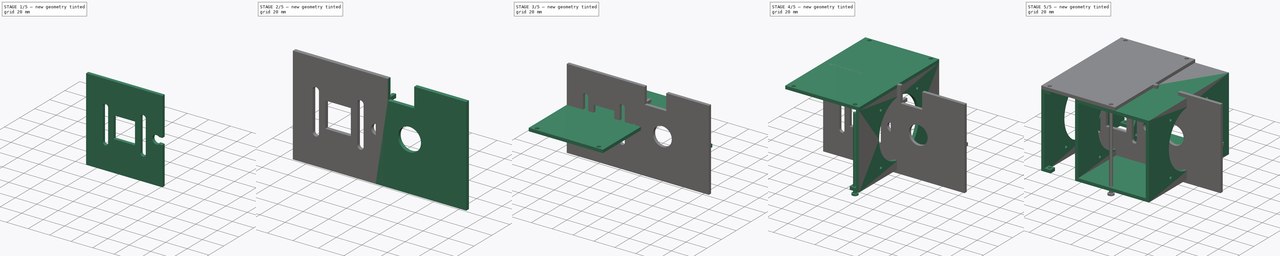
[diagram: build sequence overview — one tinted view per stage of 5, left to right]
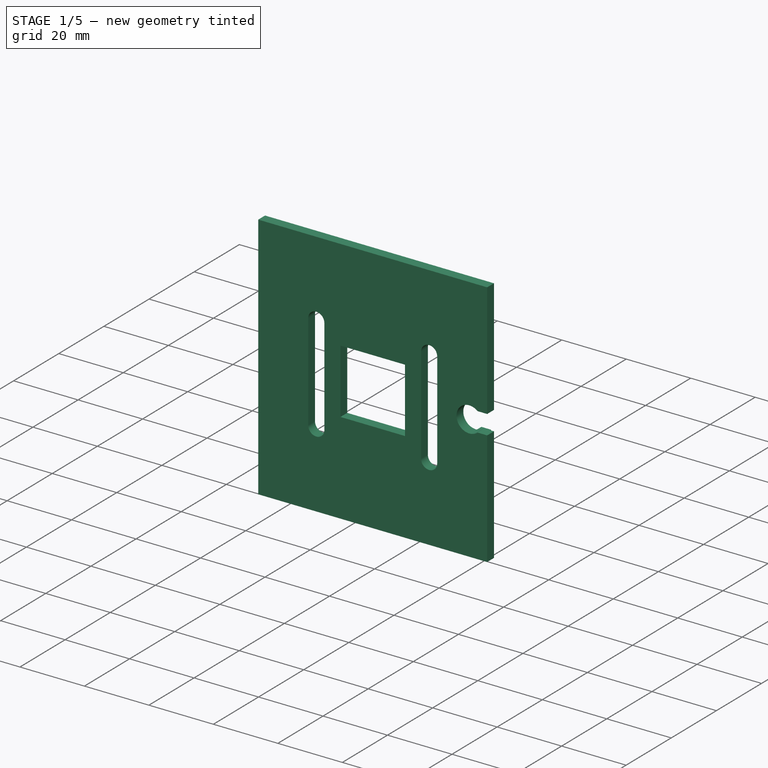
[diagram: stage 1 of 5 — iso view after this stage's code; geometry added in this stage tinted green]
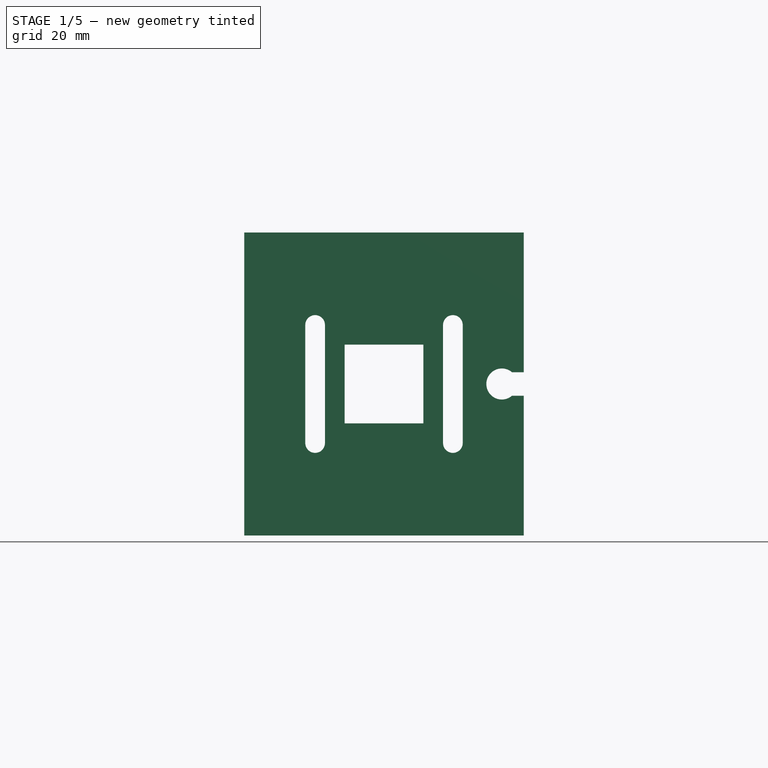
[diagram: stage 1 of 5 — front view after this stage's code; geometry added in this stage tinted green]
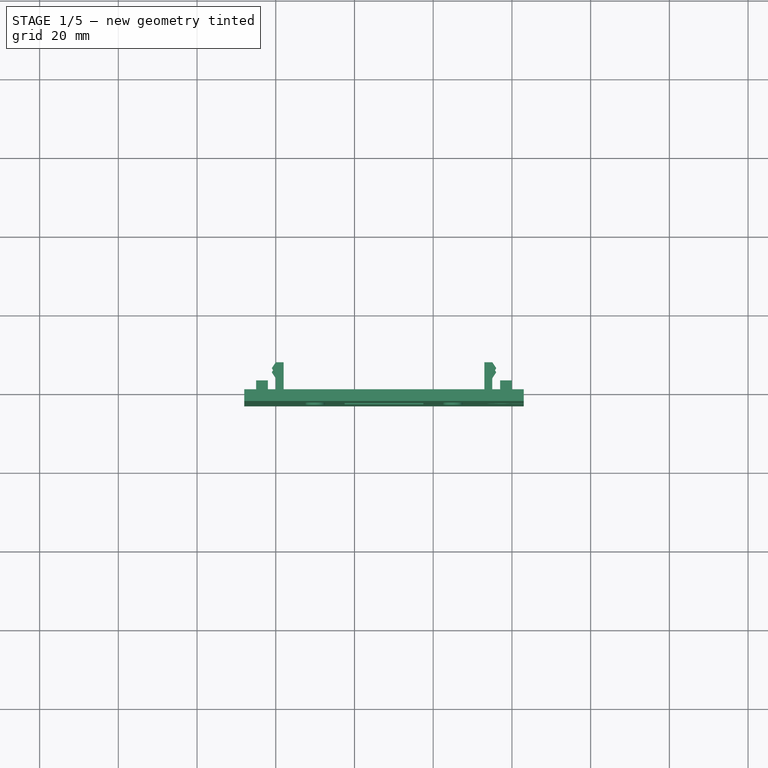
[diagram: stage 1 of 5 — top view after this stage's code; geometry added in this stage tinted green]
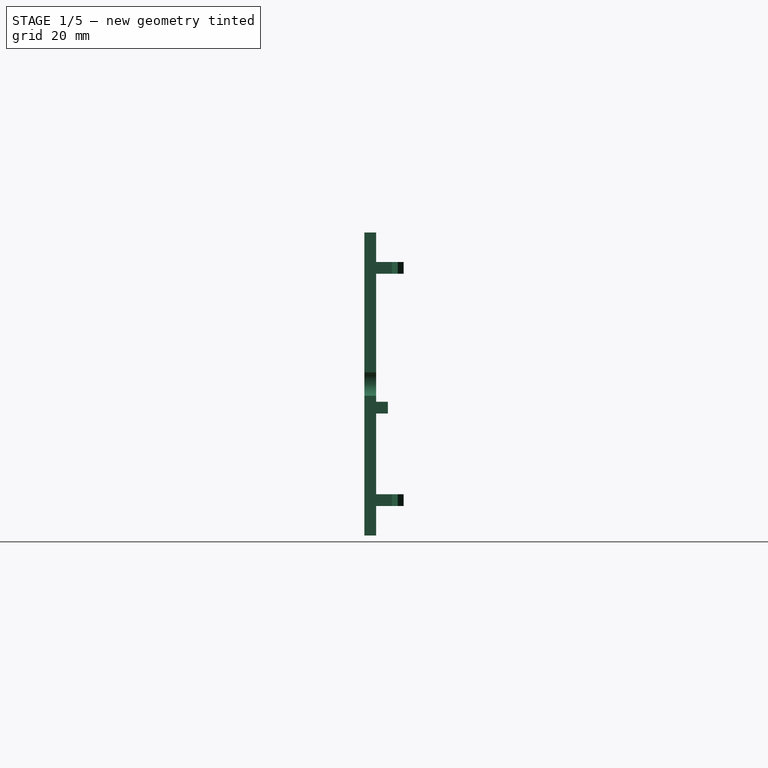
[diagram: stage 1 of 5 — right view after this stage's code; geometry added in this stage tinted green]
FCSTD DOCUMENT  (FreeCAD 0.19R24291 (Git))
Label: psu
License: All rights reserved
LicenseURL: http://en.wikipedia.org/wiki/All_rights_reserved
objects: Sketcher::SketchObject×14, PartDesign::Pad×12, PartDesign::Body×5, PartDesign::Mirrored×3, Part::Mirroring×2, PartDesign::Pocket×1, Part::FeaturePython×1
note: 51 computed .brp shape members not serialized (recipe doc carries the construction recipe); baked Part::Feature solids carry a one-line shape summary decoded from their .brp

FEATURE [Sketcher::SketchObject] Sketch009
  AttachmentOffset = pos=(0,0,31) rot=(0,0,1;0rad)
  FullyConstrained = true
  MapMode = 5
  Placement = pos=(0,0,31) rot=(0,0,1;0rad)
  Support = -> [XY_Plane003]
  sketch-geometry (12):
    g0: LineSegment StartX=-5 StartY=0 StartZ=0 EndX=-5 EndY=4 EndZ=0
    g1: LineSegment StartX=-5 StartY=4 StartZ=0 EndX=-4 EndY=5.5 EndZ=0
    g2: LineSegment StartX=-4 StartY=5.5 StartZ=0 EndX=-5 EndY=7 EndZ=0
    g3: LineSegment StartX=-5 StartY=7 StartZ=0 EndX=-7 EndY=7 EndZ=0
    g4: LineSegment StartX=-7 StartY=7 StartZ=0 EndX=-7 EndY=0 EndZ=0
    g5: LineSegment StartX=-7 StartY=0 StartZ=0 EndX=-5 EndY=0 EndZ=0
    g6: LineSegment StartX=-60 StartY=0 StartZ=0 EndX=-60 EndY=4 EndZ=0
    g7: LineSegment StartX=-60 StartY=4 StartZ=0 EndX=-61 EndY=5.5 EndZ=0
    g8: LineSegment StartX=-61 StartY=5.5 StartZ=0 EndX=-60 EndY=7 EndZ=0
    g9: LineSegment StartX=-60 StartY=7 StartZ=0 EndX=-58 EndY=7 EndZ=0
    g10: LineSegment StartX=-58 StartY=7 StartZ=0 EndX=-58 EndY=0 EndZ=0
    g11: LineSegment StartX=-58 StartY=0 StartZ=0 EndX=-60 EndY=0 EndZ=0
  constraints (36):
    c: PointOnObject(g0,g-1)
    c: Coincident(g0,g1)
    c: Coincident(g1,g2)
    c: Coincident(g2,g3)
    c: Coincident(g3,g4)
    c: PointOnObject(g4,g-1)
    c: Coincident(g4,g5)
    c: Coincident(g5,g0)
    c: DistanceX(g0,g-1) = 5
    c: DistanceX(g5,g5) = 2
    c: DistanceY(g4,g4) = 7
    c: Equal(g1,g2)
    c: DistanceY(g0,g0) = 4
    c: DistanceX(g0,g1) = 1
    c: Horizontal(g3)
    c: Vertical(g0)
    c: Equal(g3,g5)
    c: Vertical(g4)
    c: PointOnObject(g6,g-1)
    c: Vertical(g6)
    c: Coincident(g6,g7)
    c: Coincident(g7,g8)
    c: Coincident(g8,g9)
    c: Horizontal(g9)
    c: Coincident(g9,g10)
    c: PointOnObject(g10,g-1)
    c: Vertical(g10)
    c: Coincident(g10,g11)
    c: Coincident(g11,g6)
    c: Equal(g7,g8)
    c: Equal(g8,g2)
    c: Equal(g11,g9)
    c: Equal(g9,g3)
    c: Equal(g6,g0)
    c: Equal(g10,g4)
    c: DistanceX(g6,g-1) = 60
FEATURE [Sketcher::SketchObject] Sketch008
  FullyConstrained = true
  MapMode = 5
  Placement = pos=(0,0,0) rot=(1,0,0;1.5708rad)
  Support = -> [XZ_Plane003]
  sketch-geometry (23):
    g0: LineSegment StartX=-68 StartY=-38.5 StartZ=0 EndX=3 EndY=-38.5 EndZ=0
    g1: LineSegment StartX=3 StartY=38.5 StartZ=0 EndX=-68 EndY=38.5 EndZ=0
    g2: LineSegment StartX=-68 StartY=38.5 StartZ=0 EndX=-68 EndY=-38.5 EndZ=0
    g3: LineSegment StartX=-6.5 StartY=0 StartZ=0 EndX=3 EndY=0 EndZ=0
    g4: LineSegment StartX=3 StartY=-3 StartZ=0 EndX=3 EndY=-38.5 EndZ=0
    g5: LineSegment StartX=3 StartY=3 StartZ=0 EndX=3 EndY=38.5 EndZ=0
    g6: ArcOfCircle CenterX=-2.55769 CenterY=0 CenterZ=0 NormalX=0 NormalY=0 NormalZ=1 AngleXU=0 Radius=3.94231 StartAngle=0.864816 EndAngle=5.41837
    g7: LineSegment StartX=4e-16 StartY=-3 StartZ=0 EndX=3 EndY=-3 EndZ=0
    g8: LineSegment StartX=0 StartY=3 StartZ=0 EndX=3 EndY=3 EndZ=0
    g9: ArcOfCircle CenterX=-15 CenterY=15 CenterZ=0 NormalX=0 NormalY=0 NormalZ=1 AngleXU=0 Radius=2.5 StartAngle=0 EndAngle=3.14159
    g10: ArcOfCircle CenterX=-15 CenterY=-15 CenterZ=0 NormalX=0 NormalY=0 NormalZ=1 AngleXU=0 Radius=2.5 StartAngle=3.14159 EndAngle=6.28319
    g11: LineSegment StartX=-17.5 StartY=15 StartZ=0 EndX=-17.5 EndY=-15 EndZ=0
    g12: LineSegment StartX=-12.5 StartY=15 StartZ=0 EndX=-12.5 EndY=-15 EndZ=0
    g13: ArcOfCircle CenterX=-50 CenterY=15 CenterZ=0 NormalX=0 NormalY=0 NormalZ=1 AngleXU=0 Radius=2.5 StartAngle=0 EndAngle=3.14159
    g14: ArcOfCircle CenterX=-50 CenterY=-15 CenterZ=0 NormalX=0 NormalY=0 NormalZ=1 AngleXU=0 Radius=2.5 StartAngle=3.14159 EndAngle=6.28319
    g15: LineSegment StartX=-52.5 StartY=15 StartZ=0 EndX=-52.5 EndY=-15 EndZ=0
    g16: LineSegment StartX=-47.5 StartY=15 StartZ=0 EndX=-47.5 EndY=-15 EndZ=0
    g17: LineSegment StartX=-42.5 StartY=10 StartZ=0 EndX=-22.5 EndY=10 EndZ=0
    g18: LineSegment StartX=-22.5 StartY=10 StartZ=0 EndX=-22.5 EndY=-10 EndZ=0
    g19: LineSegment StartX=-22.5 StartY=-10 StartZ=0 EndX=-42.5 EndY=-10 EndZ=0
    g20: LineSegment StartX=-42.5 StartY=-10 StartZ=0 EndX=-42.5 EndY=10 EndZ=0
    g21: GeomPoint X=-32.5 Y=38.5 Z=0
    g22: LineSegment StartX=-32.5 StartY=38.5 StartZ=0 EndX=-32.5 EndY=10 EndZ=0
  constraints (59):
    c: Coincident(g1,g2)
    c: Coincident(g2,g0)
    c: Horizontal(g0)
    c: Horizontal(g1)
    c: Vertical(g2)
    c: Symmetric(g1,g0,g-1)
    c: DistanceY(g0,g1) = 77
    c: DistanceX(g1) = 3
    c: DistanceX(g1,g1) = 71
    c: Horizontal(g3)
    c: PointOnObject(g3,g-1)
    c: Coincident(g4,g0)
    c: Vertical(g4)
    c: Coincident(g5,g1)
    c: Vertical(g5,g3)
    c: PointOnObject(g6,g3)
    c: PointOnObject(g3,g6)
    c: PointOnObject(g6,g-2)
    c: PointOnObject(g6,g-2)
    c: Coincident(g7,g6)
    c: Coincident(g7,g4)
    c: Coincident(g8,g6)
    c: Coincident(g8,g5)
    c: Horizontal(g8)
    c: Horizontal(g7)
    c: DistanceX(g3,g-1) = 6.5
    c: DistanceY(g6,g6) = 6
    c: Vertical(g5)
    c: Tangent(g9,g12) = 1.5708
    c: Tangent(g9,g11) = -1.5708
    c: Tangent(g11,g10) = -1.5708
    c: Tangent(g12,g10) = 1.5708
    c: Vertical(g11)
    c: Tangent(g13,g16) = 1.5708
    c: Tangent(g13,g15) = -1.5708
    c: Tangent(g15,g14) = -1.5708
    c: Tangent(g16,g14) = 1.5708
    c: Vertical(g15)
    c: Symmetric(g13,g14,g-1)
    c: Symmetric(g9,g10,g-1)
    c: Equal(g11,g16)
    c: Equal(g13,g9)
    c: Diameter(g13) = 5
    c: DistanceY(g11,g11) = 30
    c: DistanceX(g14,g10) = 30
    c: Coincident(g17,g18)
    c: Coincident(g18,g19)
    c: Coincident(g19,g20)
    c: Coincident(g20,g17)
    c: Horizontal(g19)
    c: Vertical(g18)
    c: Symmetric(g1,g1,g21)
    c: Coincident(g22,g21)
    c: PointOnObject(g22,g17)
    c: Symmetric(g9,g13,g22)
    c: Symmetric(g17,g17,g22)
    c: Symmetric(g17,g19,g-1)
    c: DistanceY(g20,g20) = 20
    c: DistanceX(g17,g17) = 20
FEATURE [PartDesign::Pad] Pad004  label="main"
  Direction = (1,1,1)
  Length = 3
  Length2 = 100
  Placement = pos=(0,0,0) rot=(1,0,0;1.5708rad)
  Profile = -> Sketch008
  Type = 0
FEATURE [PartDesign::Pad] Pad005  label="pengait"
  BaseFeature = -> Pad004
  Direction = (1,1,1)
  Length = 3
  Length2 = 100
  Placement = pos=(0,0,0) rot=(1,0,0;1.5708rad)
  Profile = -> Sketch009
  Reversed = true
  Type = 0
FEATURE [PartDesign::Mirrored] Mirrored001
  BaseFeature = -> Pad005
  MirrorPlane = -> XY_Plane003
  Originals = -> [Pad005]
  Placement = pos=(0,0,0) rot=(1,0,0;1.5708rad)
FEATURE [PartDesign::Body] Body004  label="coverback"
  Group = -> [Sketch010,Pad006,Sketch011,Pad007,Mirrored002,Sketch012,Pad008,Sketch013,Pad009]
  Origin = -> Origin004
  Placement = pos=(0,55,0) rot=(0,0,1;3.14159rad)
  Tip = -> Pad009
FEATURE [Sketcher::SketchObject] Sketch014
  AttachmentOffset = pos=(0,0,-6) rot=(0,0,1;0rad)
  FullyConstrained = true
  MapMode = 5
  Placement = pos=(0,0,-6) rot=(0,0,1;0rad)
  Support = -> [XY_Plane003]
  sketch-geometry (8):
    g0: LineSegment StartX=0 StartY=0 StartZ=0 EndX=-3 EndY=0 EndZ=0
    g1: LineSegment StartX=-3 StartY=0 StartZ=0 EndX=-3 EndY=3 EndZ=0
    g2: LineSegment StartX=-3 StartY=3 StartZ=0 EndX=0 EndY=3 EndZ=0
    g3: LineSegment StartX=0 StartY=3 StartZ=0 EndX=0 EndY=0 EndZ=0
    g4: LineSegment StartX=-65 StartY=0 StartZ=0 EndX=-62 EndY=0 EndZ=0
    g5: LineSegment StartX=-62 StartY=0 StartZ=0 EndX=-62 EndY=3 EndZ=0
    g6: LineSegment StartX=-62 StartY=3 StartZ=0 EndX=-65 EndY=3 EndZ=0
    g7: LineSegment StartX=-65 StartY=3 StartZ=0 EndX=-65 EndY=0 EndZ=0
  constraints (23):
    c: Coincident(g0,g1)
    c: Coincident(g1,g2)
    c: Coincident(g2,g3)
    c: Coincident(g3,g0)
    c: Horizontal(g0)
    c: Horizontal(g2)
    c: Vertical(g1)
    c: Vertical(g3)
    c: Coincident(g0,g-1)
    c: Coincident(g4,g5)
    c: Coincident(g5,g6)
    c: Coincident(g6,g7)
    c: Coincident(g7,g4)
    c: Horizontal(g4)
    c: Horizontal(g6)
    c: Vertical(g5)
    c: Vertical(g7)
    c: PointOnObject(g4,g-1)
    c: DistanceX(g4,g0) = 65
    c: Equal(g2,g1)
    c: Equal(g1,g6)
    c: Equal(g6,g5)
    c: DistanceX(g6,g5) = 3
FEATURE [PartDesign::Pad] Pad010
  BaseFeature = -> Mirrored001
  Direction = (1,1,1)
  Length = 3
  Length2 = 100
  Midplane = true
  Placement = pos=(0,0,0) rot=(1,0,0;1.5708rad)
  Profile = -> Sketch014
  Type = 0
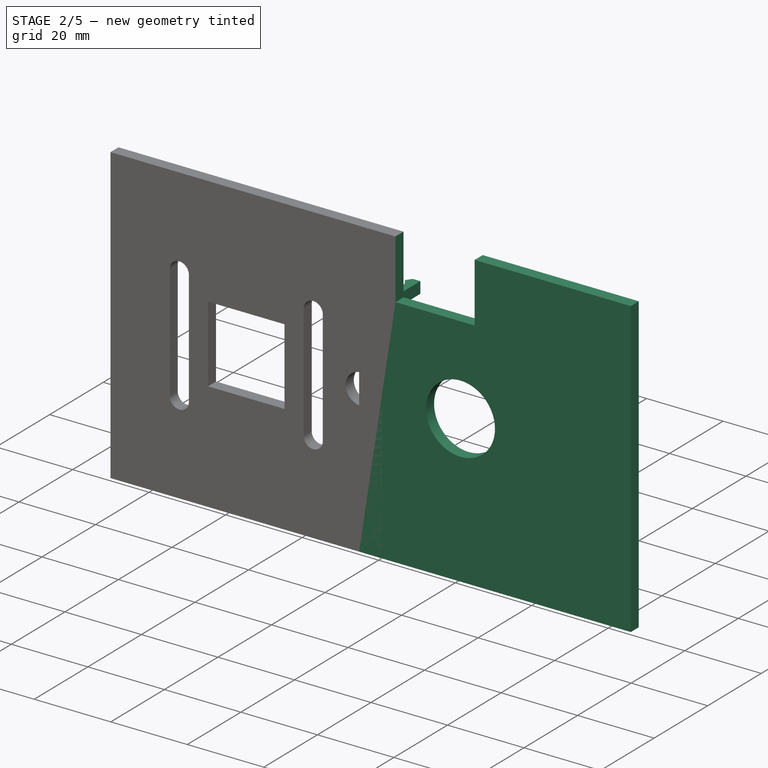
[diagram: stage 2 of 5 — iso view after this stage's code; geometry added in this stage tinted green]
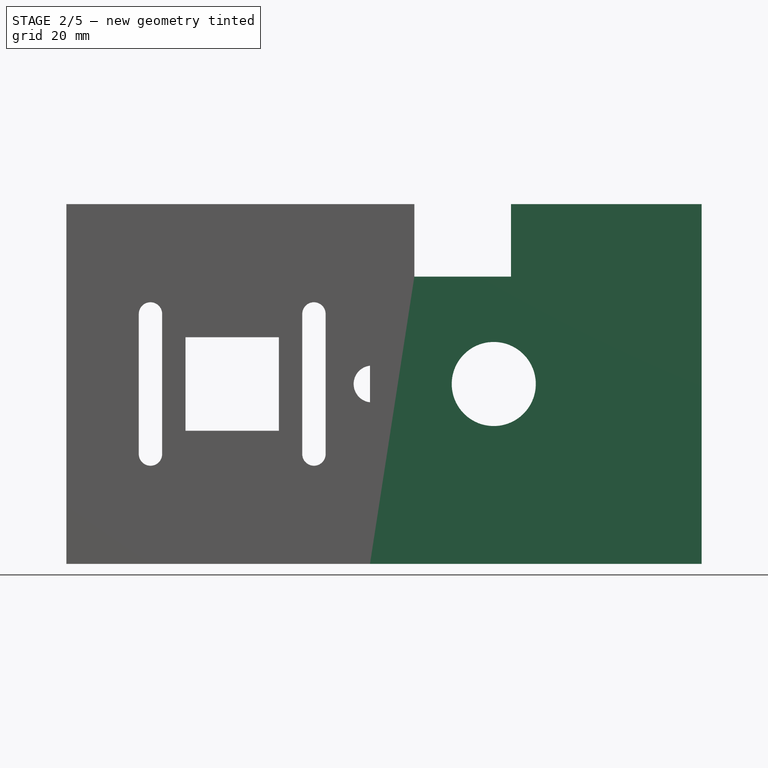
[diagram: stage 2 of 5 — front view after this stage's code; geometry added in this stage tinted green]
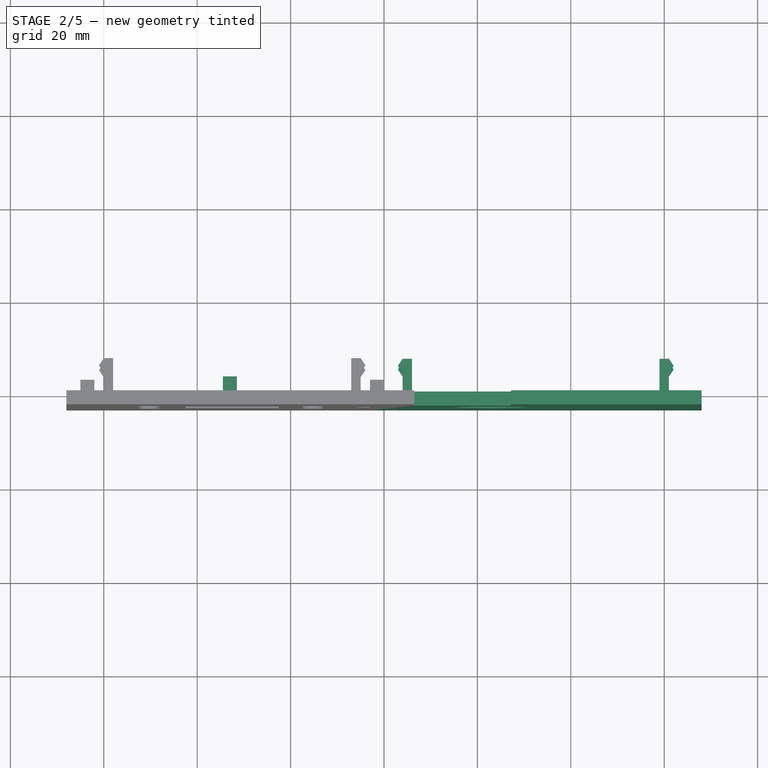
[diagram: stage 2 of 5 — top view after this stage's code; geometry added in this stage tinted green]
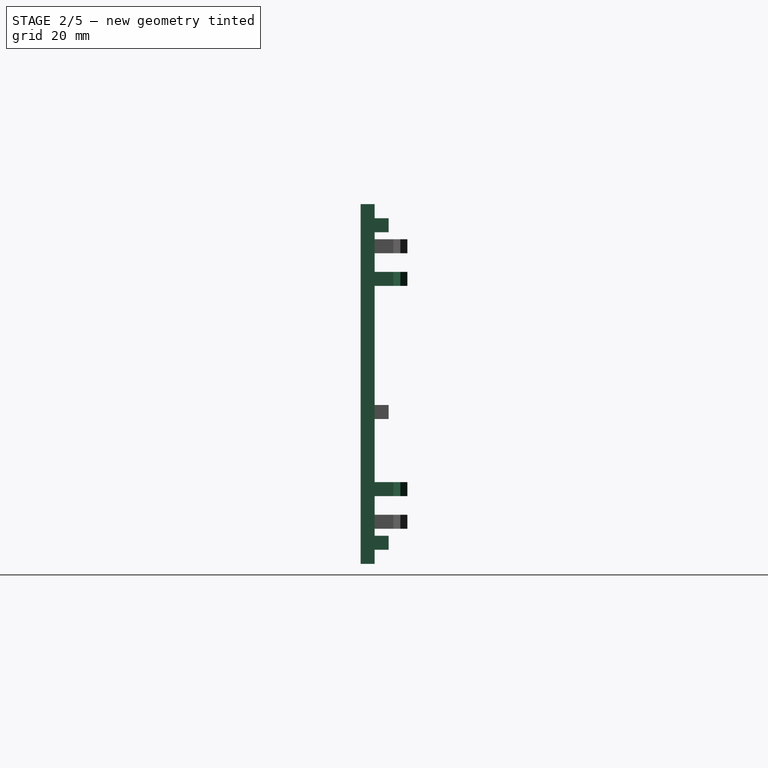
[diagram: stage 2 of 5 — right view after this stage's code; geometry added in this stage tinted green]
FEATURE [Sketcher::SketchObject] Sketch010
  FullyConstrained = true
  MapMode = 5
  Placement = pos=(0,0,0) rot=(1,0,0;1.5708rad)
  Support = -> [XZ_Plane004]
  sketch-geometry (10):
    g0: LineSegment StartX=68 StartY=38.5 StartZ=0 EndX=68 EndY=-38.5 EndZ=0
    g1: LineSegment StartX=68 StartY=-38.5 StartZ=0 EndX=-3 EndY=-38.5 EndZ=0
    g2: LineSegment StartX=-3 StartY=-38.5 StartZ=0 EndX=-3 EndY=38.5 EndZ=0
    g3: LineSegment StartX=32.5 StartY=38.5 StartZ=0 EndX=32.5 EndY=-38.5 EndZ=0
    g4: Circle CenterX=23.5 CenterY=0 CenterZ=0 NormalX=0 NormalY=0 NormalZ=1 AngleXU=0 Radius=9
    g5: LineSegment StartX=27.2 StartY=38.5 StartZ=0 EndX=27.2 EndY=23 EndZ=0
    g6: LineSegment StartX=27.2 StartY=23 StartZ=0 EndX=6.5 EndY=23 EndZ=0
    g7: LineSegment StartX=6.5 StartY=23 StartZ=0 EndX=6.5 EndY=38.5 EndZ=0
    g8: LineSegment StartX=-3 StartY=38.5 StartZ=0 EndX=6.5 EndY=38.5 EndZ=0
    g9: LineSegment StartX=27.2 StartY=38.5 StartZ=0 EndX=68 EndY=38.5 EndZ=0
  constraints (29):
    c: Coincident(g0,g1)
    c: Coincident(g1,g2)
    c: Horizontal(g1)
    c: Vertical(g0)
    c: Symmetric(g1,g2,g-1)
    c: DistanceY(g2,g2) = 77
    c: DistanceX(g2,g0) = 71
    c: DistanceX(g1,g-1) = 3
    c: PointOnObject(g3,g1)
    c: Vertical(g3)
    c: Symmetric(g0,g2,g3)
    c: PointOnObject(g4,g-1)
    c: Tangent(g4,g3)
    c: Diameter(g4) = 18
    c: Coincident(g5,g6)
    c: Coincident(g6,g7)
    c: Horizontal(g6)
    c: Vertical(g5)
    c: Vertical(g7)
    c: Coincident(g8,g2)
    c: Horizontal(g8)
    c: Coincident(g9,g0)
    c: Horizontal(g9)
    c: Coincident(g9,g5)
    c: Coincident(g7,g8)
    c: DistanceY(g7,g7) = 15.5
    c: DistanceX(g8,g8) = 9.5
    c: DistanceX(g6,g6) = 20.7
    c: Horizontal(g5,g3)
FEATURE [PartDesign::Pad] Pad006  label="main001"
  Direction = (1,1,1)
  Length = 3
  Length2 = 100
  Placement = pos=(0,0,0) rot=(1,0,0;1.5708rad)
  Profile = -> Sketch010
  Type = 0
FEATURE [Sketcher::SketchObject] Sketch011
  AttachmentOffset = pos=(0,0,24) rot=(0,0,1;0rad)
  FullyConstrained = true
  MapMode = 5
  Placement = pos=(0,0,24) rot=(0,0,1;0rad)
  Support = -> [XY_Plane004]
  sketch-geometry (12):
    g0: LineSegment StartX=61 StartY=0 StartZ=0 EndX=61 EndY=4 EndZ=0
    g1: LineSegment StartX=61 StartY=4 StartZ=0 EndX=62 EndY=5.5 EndZ=0
    g2: LineSegment StartX=62 StartY=5.5 StartZ=0 EndX=61 EndY=7 EndZ=0
    g3: LineSegment StartX=61 StartY=7 StartZ=0 EndX=59 EndY=7 EndZ=0
    g4: LineSegment StartX=59 StartY=7 StartZ=0 EndX=59 EndY=0 EndZ=0
    g5: LineSegment StartX=59 StartY=0 StartZ=0 EndX=61 EndY=0 EndZ=0
    g6: LineSegment StartX=4 StartY=0 StartZ=0 EndX=4 EndY=4 EndZ=0
    g7: LineSegment StartX=4 StartY=4 StartZ=0 EndX=3 EndY=5.5 EndZ=0
    g8: LineSegment StartX=3 StartY=5.5 StartZ=0 EndX=4 EndY=7 EndZ=0
    g9: LineSegment StartX=4 StartY=7 StartZ=0 EndX=6 EndY=7 EndZ=0
    g10: LineSegment StartX=6 StartY=7 StartZ=0 EndX=6 EndY=0 EndZ=0
    g11: LineSegment StartX=6 StartY=0 StartZ=0 EndX=4 EndY=0 EndZ=0
  constraints (36):
    c: PointOnObject(g0,g-1)
    c: Coincident(g0,g1)
    c: Coincident(g1,g2)
    c: Coincident(g2,g3)
    c: Coincident(g3,g4)
    c: PointOnObject(g4,g-1)
    c: Coincident(g4,g5)
    c: Coincident(g5,g0)
    c: DistanceX(g5,g5) = 2
    c: DistanceY(g4,g4) = 7
    c: Equal(g1,g2)
    c: DistanceY(g0,g0) = 4
    c: DistanceX(g0,g1) = 1
    c: Horizontal(g3)
    c: Vertical(g0)
    c: Equal(g3,g5)
    c: Vertical(g4)
    c: PointOnObject(g6,g-1)
    c: Vertical(g6)
    c: Coincident(g6,g7)
    c: Coincident(g7,g8)
    c: Coincident(g8,g9)
    c: Horizontal(g9)
    c: Coincident(g9,g10)
    c: PointOnObject(g10,g-1)
    c: Vertical(g10)
    c: Coincident(g10,g11)
    c: Coincident(g11,g6)
    c: Equal(g7,g8)
    c: Equal(g8,g2)
    c: Equal(g11,g9)
    c: Equal(g9,g3)
    c: Equal(g6,g0)
    c: Equal(g10,g4)
    c: DistanceX(g10,g4) = 53
    c: DistanceX(g-1,g6) = 4
FEATURE [PartDesign::Pad] Pad007  label="pengait001"
  BaseFeature = -> Pad006
  Direction = (1,1,1)
  Length = 3
  Length2 = 100
  Placement = pos=(0,0,0) rot=(1,0,0;1.5708rad)
  Profile = -> Sketch011
  Reversed = true
  Type = 0
FEATURE [PartDesign::Mirrored] Mirrored002
  BaseFeature = -> Pad007
  MirrorPlane = -> XY_Plane004
  Originals = -> [Pad007]
  Placement = pos=(0,0,0) rot=(1,0,0;1.5708rad)
FEATURE [Sketcher::SketchObject] Sketch015
  AttachmentOffset = pos=(0,0,-33) rot=(0,0,1;0rad)
  FullyConstrained = true
  MapMode = 5
  Placement = pos=(-33,7.3e-15,-7.3e-15) rot=(0.57735,0.57735,0.57735;2.0944rad)
  Support = -> [YZ_Plane003]
  sketch-geometry (8):
    g0: LineSegment StartX=0 StartY=-35.5 StartZ=0 EndX=3 EndY=-35.5 EndZ=0
    g1: LineSegment StartX=3 StartY=-35.5 StartZ=0 EndX=3 EndY=-32.5 EndZ=0
    g2: LineSegment StartX=3 StartY=-32.5 StartZ=0 EndX=0 EndY=-32.5 EndZ=0
    g3: LineSegment StartX=0 StartY=-32.5 StartZ=0 EndX=0 EndY=-35.5 EndZ=0
    g4: LineSegment StartX=0 StartY=32.5 StartZ=0 EndX=3 EndY=32.5 EndZ=0
    g5: LineSegment StartX=3 StartY=32.5 StartZ=0 EndX=3 EndY=35.5 EndZ=0
    g6: LineSegment StartX=3 StartY=35.5 StartZ=0 EndX=0 EndY=35.5 EndZ=0
    g7: LineSegment StartX=0 StartY=35.5 StartZ=0 EndX=0 EndY=32.5 EndZ=0
  constraints (23):
    c: Coincident(g0,g1)
    c: Coincident(g1,g2)
    c: Coincident(g2,g3)
    c: Coincident(g3,g0)
    c: Horizontal(g0)
    c: Horizontal(g2)
    c: Vertical(g1)
    c: Vertical(g3)
    c: PointOnObject(g0,g-2)
    c: Coincident(g4,g5)
    c: Coincident(g5,g6)
    c: Coincident(g6,g7)
    c: Coincident(g7,g4)
    c: Horizontal(g4)
    c: Horizontal(g6)
    c: Vertical(g5)
    c: Vertical(g7)
    c: Equal(g4,g5)
    c: Equal(g5,g2)
    c: Equal(g2,g1)
    c: DistanceY(g1,g1) = 3
    c: Symmetric(g2,g4,g-1)
    c: DistanceY(g1,g4) = 65
FEATURE [PartDesign::Pad] Pad011
  BaseFeature = -> Pad010
  Direction = (1,1,1)
  Length = 3
  Length2 = 100
  Midplane = true
  Placement = pos=(0,0,0) rot=(1,0,0;1.5708rad)
  Profile = -> Sketch015
  Type = 0
FEATURE [PartDesign::Body] Body003  label="coverfront"
  Group = -> [Sketch008,Sketch009,Pad004,Pad005,Mirrored001,Sketch014,Pad010,Sketch015,Pad011]
  Origin = -> Origin003
  Placement = pos=(0,-55,0) rot=(0,0,1;0rad)
  Tip = -> Pad011
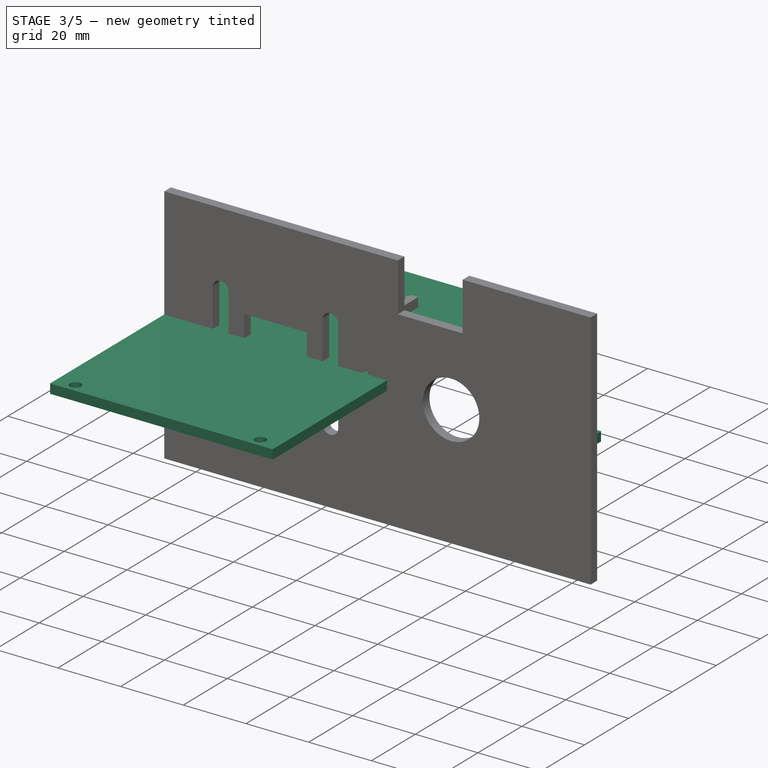
[diagram: stage 3 of 5 — iso view after this stage's code; geometry added in this stage tinted green]
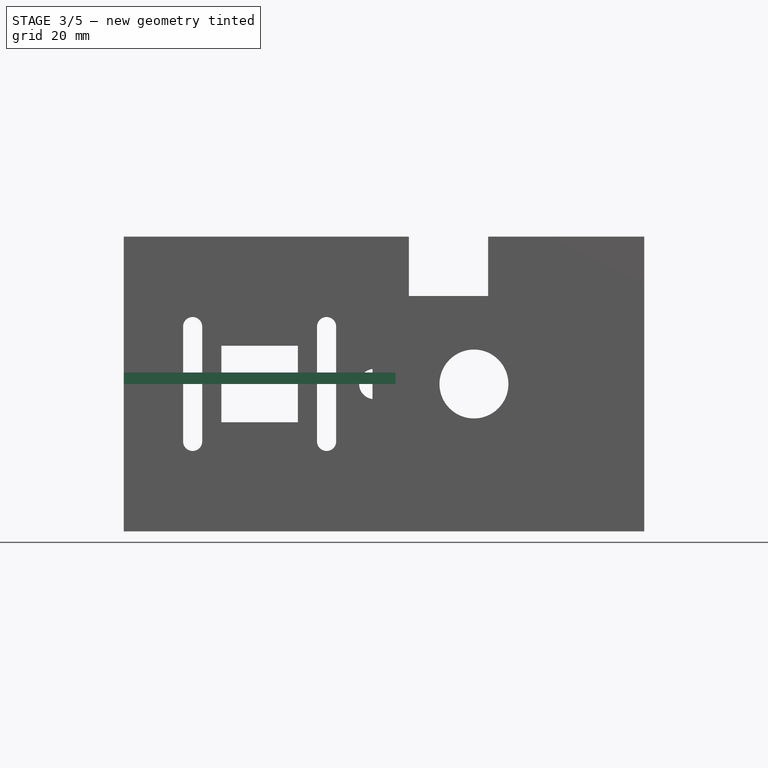
[diagram: stage 3 of 5 — front view after this stage's code; geometry added in this stage tinted green]
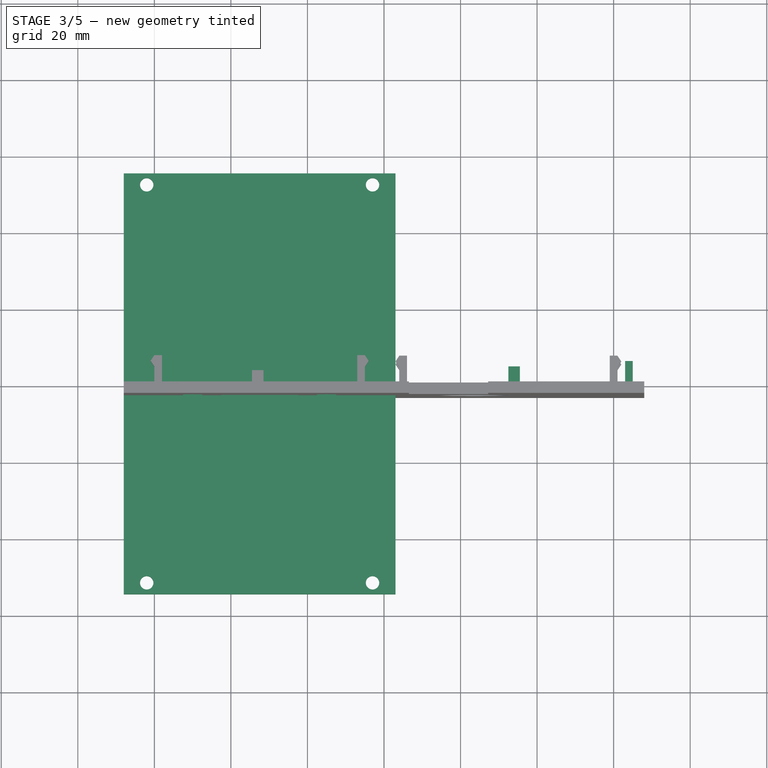
[diagram: stage 3 of 5 — top view after this stage's code; geometry added in this stage tinted green]
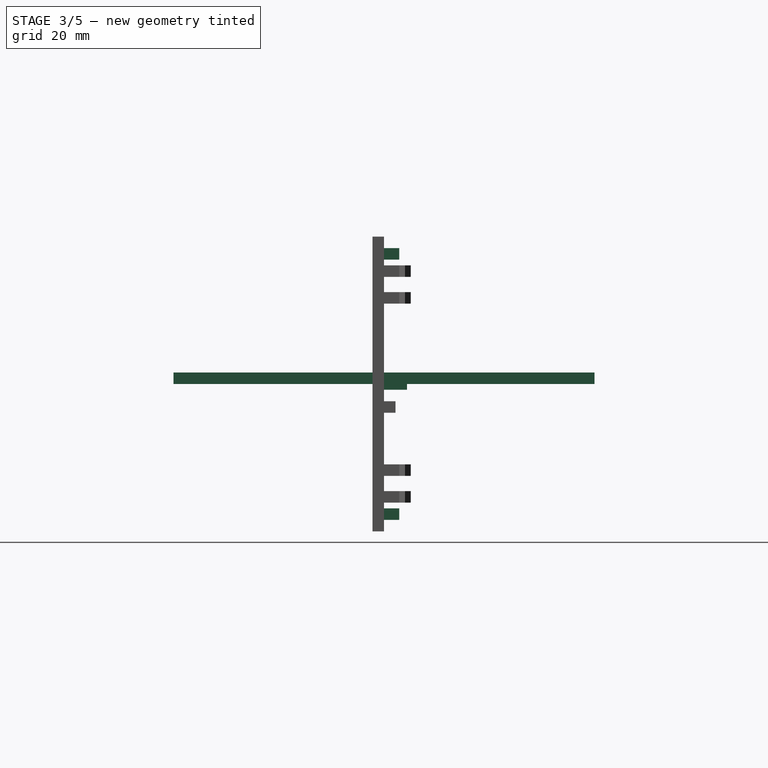
[diagram: stage 3 of 5 — right view after this stage's code; geometry added in this stage tinted green]
FEATURE [PartDesign::Body] Body001  label="coverplane"
  Group = -> [Sketch004,Pad001,Sketch005,Pad002,Mirrored]
  Origin = -> Origin001
  Tip = -> Mirrored
FEATURE [Sketcher::SketchObject] Sketch007
  FullyConstrained = true
  MapMode = 5
  Support = -> [XY_Plane002]
  sketch-geometry (12):
    g0: LineSegment StartX=3 StartY=55 StartZ=0 EndX=-68 EndY=55 EndZ=0
    g1: LineSegment StartX=-68 StartY=55 StartZ=0 EndX=-68 EndY=-55 EndZ=0
    g2: LineSegment StartX=-68 StartY=-55 StartZ=0 EndX=3 EndY=-55 EndZ=0
    g3: LineSegment StartX=3 StartY=-55 StartZ=0 EndX=3 EndY=55 EndZ=0
    g4: LineSegment StartX=-62 StartY=52 StartZ=0 EndX=-3 EndY=52 EndZ=0
    g5: LineSegment StartX=-3 StartY=52 StartZ=0 EndX=-3 EndY=-52 EndZ=0
    g6: LineSegment StartX=-3 StartY=-52 StartZ=0 EndX=-62 EndY=-52 EndZ=0
    g7: LineSegment StartX=-62 StartY=-52 StartZ=0 EndX=-62 EndY=52 EndZ=0
    g8: Circle CenterX=-62 CenterY=52 CenterZ=0 NormalX=0 NormalY=0 NormalZ=1 AngleXU=0 Radius=1.75
    g9: Circle CenterX=-62 CenterY=-52 CenterZ=0 NormalX=0 NormalY=0 NormalZ=1 AngleXU=0 Radius=1.75
    g10: Circle CenterX=-3 CenterY=52 CenterZ=0 NormalX=0 NormalY=0 NormalZ=1 AngleXU=0 Radius=1.75
    g11: Circle CenterX=-3 CenterY=-52 CenterZ=0 NormalX=0 NormalY=0 NormalZ=1 AngleXU=0 Radius=1.75
  constraints (31):
    c: Coincident(g0,g1)
    c: Coincident(g1,g2)
    c: Coincident(g2,g3)
    c: Coincident(g3,g0)
    c: Horizontal(g0)
    c: Horizontal(g2)
    c: Vertical(g3)
    c: Symmetric(g1,g0,g-1)
    c: DistanceY(g1,g1) = 110
    c: DistanceX(g0,g0) = 71
    c: DistanceX(g2) = 3
    c: Coincident(g4,g5)
    c: Coincident(g5,g6)
    c: Coincident(g6,g7)
    c: Coincident(g7,g4)
    c: Horizontal(g4)
    c: Horizontal(g6)
    c: Vertical(g5)
    c: Vertical(g7)
    c: DistanceX(g5,g2) = 6
    c: DistanceY(g5,g2) = -3
    c: DistanceY(g7,g7) = 104
    c: DistanceX(g4,g4) = 59
    c: Coincident(g8,g4)
    c: Coincident(g9,g6)
    c: Coincident(g10,g4)
    c: Coincident(g11,g5)
    c: Diameter(g11) = 3.5
    c: Equal(g11,g9)
    c: Equal(g11,g10)
    c: Equal(g11,g8)
FEATURE [PartDesign::Pad] Pad003
  Direction = (1,1,1)
  Length = 3
  Length2 = 100
  Profile = -> Sketch007
  Type = 0
FEATURE [Sketcher::SketchObject] Sketch012
  FullyConstrained = true
  MapMode = 5
  Support = -> [XY_Plane004]
  sketch-geometry (8):
    g0: LineSegment StartX=0 StartY=0 StartZ=0 EndX=2 EndY=0 EndZ=0
    g1: LineSegment StartX=2 StartY=0 StartZ=0 EndX=2 EndY=6 EndZ=0
    g2: LineSegment StartX=2 StartY=6 StartZ=0 EndX=0 EndY=6 EndZ=0
    g3: LineSegment StartX=0 StartY=6 StartZ=0 EndX=0 EndY=0 EndZ=0
    g4: LineSegment StartX=65 StartY=0 StartZ=0 EndX=63 EndY=0 EndZ=0
    g5: LineSegment StartX=63 StartY=0 StartZ=0 EndX=63 EndY=6 EndZ=0
    g6: LineSegment StartX=63 StartY=6 StartZ=0 EndX=65 EndY=6 EndZ=0
    g7: LineSegment StartX=65 StartY=6 StartZ=0 EndX=65 EndY=0 EndZ=0
  constraints (23):
    c: Coincident(g0,g1)
    c: Coincident(g1,g2)
    c: Coincident(g2,g3)
    c: Coincident(g3,g0)
    c: Horizontal(g0)
    c: Horizontal(g2)
    c: Vertical(g1)
    c: Vertical(g3)
    c: Coincident(g0,g-1)
    c: Coincident(g4,g5)
    c: Coincident(g5,g6)
    c: Coincident(g6,g7)
    c: Coincident(g7,g4)
    c: Horizontal(g4)
    c: Horizontal(g6)
    c: Vertical(g5)
    c: Vertical(g7)
    c: PointOnObject(g4,g-1)
    c: DistanceX(g1) = 2
    c: DistanceX(g1,g5) = 61
    c: Equal(g1,g5)
    c: Equal(g2,g6)
    c: DistanceY(g1,g1) = 6
FEATURE [PartDesign::Pad] Pad008
  BaseFeature = -> Mirrored002
  Direction = (1,1,1)
  Length = 3
  Length2 = 100
  Midplane = true
  Placement = pos=(0,0,0) rot=(1,0,0;1.5708rad)
  Profile = -> Sketch012
  Type = 0
FEATURE [Sketcher::SketchObject] Sketch013
  AttachmentOffset = pos=(0,0,34) rot=(0,0,1;0rad)
  FullyConstrained = true
  MapMode = 5
  Placement = pos=(34,-7.5e-15,7.5e-15) rot=(0.57735,0.57735,0.57735;2.0944rad)
  Support = -> [YZ_Plane004]
  sketch-geometry (8):
    g0: LineSegment StartX=0 StartY=-35.5 StartZ=0 EndX=4 EndY=-35.5 EndZ=0
    g1: LineSegment StartX=4 StartY=-35.5 StartZ=0 EndX=4 EndY=-32.5 EndZ=0
    g2: LineSegment StartX=4 StartY=-32.5 StartZ=0 EndX=0 EndY=-32.5 EndZ=0
    g3: LineSegment StartX=0 StartY=-32.5 StartZ=0 EndX=0 EndY=-35.5 EndZ=0
    g4: LineSegment StartX=0 StartY=32.5 StartZ=0 EndX=4 EndY=32.5 EndZ=0
    g5: LineSegment StartX=4 StartY=32.5 StartZ=0 EndX=4 EndY=35.5 EndZ=0
    g6: LineSegment StartX=4 StartY=35.5 StartZ=0 EndX=0 EndY=35.5 EndZ=0
    g7: LineSegment StartX=0 StartY=35.5 StartZ=0 EndX=0 EndY=32.5 EndZ=0
  constraints (23):
    c: Coincident(g0,g1)
    c: Coincident(g1,g2)
    c: Coincident(g2,g3)
    c: Coincident(g3,g0)
    c: Horizontal(g0)
    c: Horizontal(g2)
    c: Vertical(g1)
    c: Vertical(g3)
    c: PointOnObject(g0,g-2)
    c: Coincident(g4,g5)
    c: Coincident(g5,g6)
    c: Coincident(g6,g7)
    c: Coincident(g7,g4)
    c: Horizontal(g4)
    c: Horizontal(g6)
    c: Vertical(g5)
    c: Vertical(g7)
    c: Equal(g7,g3)
    c: DistanceY(g0) = -35.5
    c: DistanceY(g1,g1) = 3
    c: DistanceX(g2,g2) = 4
    c: Equal(g2,g4)
    c: Symmetric(g4,g2,g-1)
FEATURE [PartDesign::Pad] Pad009
  BaseFeature = -> Pad008
  Direction = (1,1,1)
  Length = 3
  Length2 = 100
  Midplane = true
  Placement = pos=(0,0,0) rot=(1,0,0;1.5708rad)
  Profile = -> Sketch013
  Type = 0
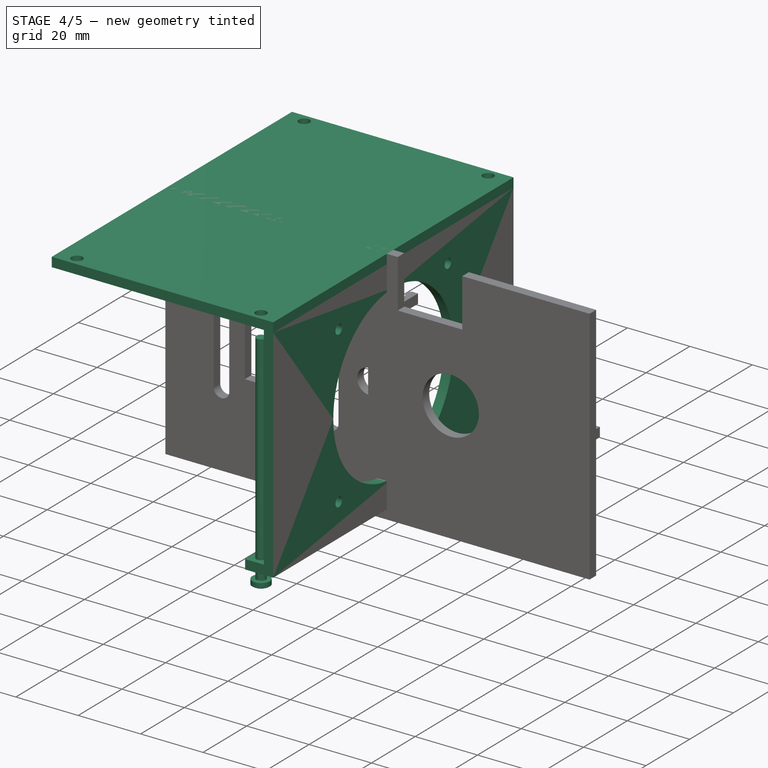
[diagram: stage 4 of 5 — iso view after this stage's code; geometry added in this stage tinted green]
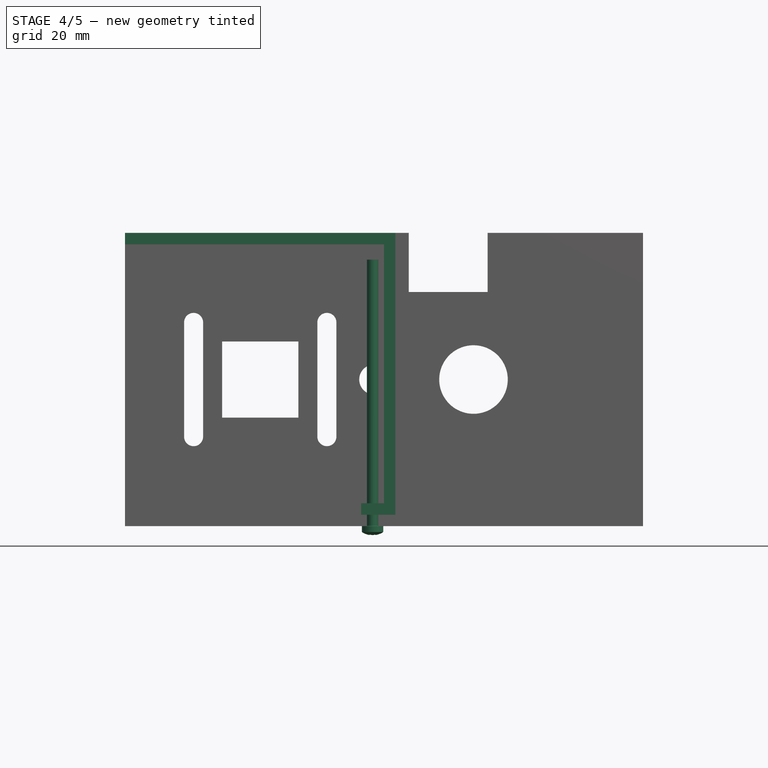
[diagram: stage 4 of 5 — front view after this stage's code; geometry added in this stage tinted green]
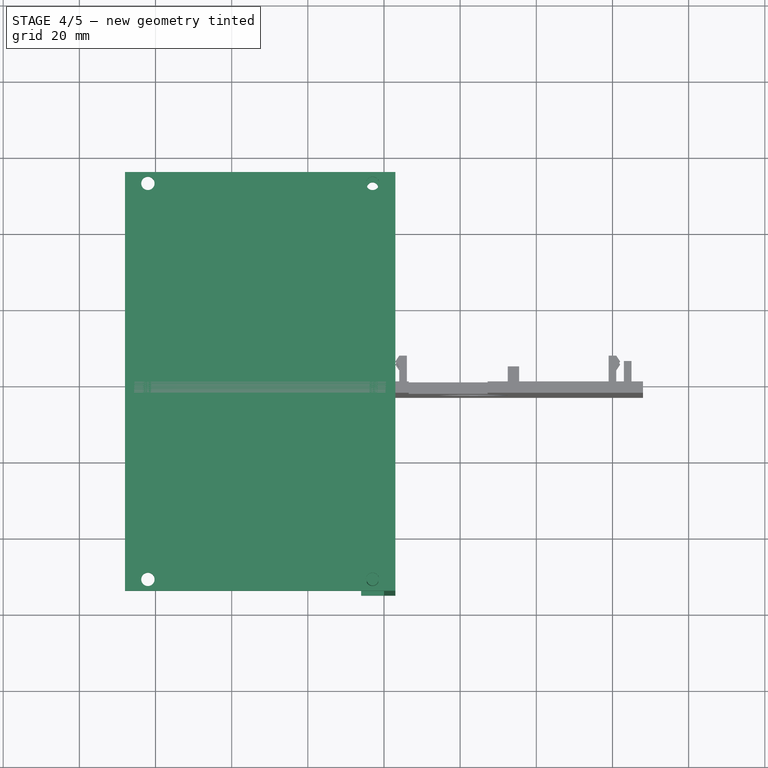
[diagram: stage 4 of 5 — top view after this stage's code; geometry added in this stage tinted green]
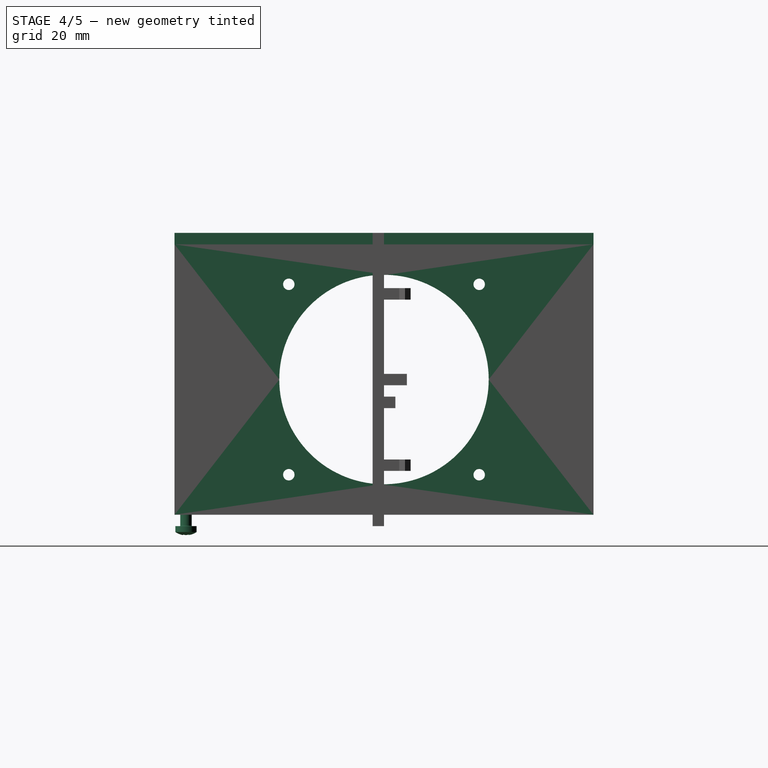
[diagram: stage 4 of 5 — right view after this stage's code; geometry added in this stage tinted green]
FEATURE [Sketcher::SketchObject] Sketch003
  FullyConstrained = false
  MapMode = 5
  Placement = pos=(0,0,0) rot=(1,0,0;1.5708rad)
  Support = -> [XZ_Plane]
  sketch-geometry (1):
    g0: LineSegment StartX=-33 StartY=41 StartZ=0 EndX=-33 EndY=30.6557 EndZ=0
  constraints (1):
    c: Vertical(g0)
FEATURE [PartDesign::Body] Body  label="cover"
  Group = -> [Sketch,Sketch001,Pad,Pocket,Sketch003]
  Origin = -> Origin
  Tip = -> Pocket
FEATURE [Sketcher::SketchObject] Sketch004
  FullyConstrained = true
  MapMode = 5
  Placement = pos=(0,0,0) rot=(0.57735,0.57735,0.57735;2.0944rad)
  Support = -> [YZ_Plane001]
  sketch-geometry (13):
    g0: LineSegment StartX=-55 StartY=35.5 StartZ=0 EndX=55 EndY=35.5 EndZ=0
    g1: LineSegment StartX=55 StartY=35.5 StartZ=0 EndX=55 EndY=-35.5 EndZ=0
    g2: LineSegment StartX=55 StartY=-35.5 StartZ=0 EndX=-55 EndY=-35.5 EndZ=0
    g3: LineSegment StartX=-55 StartY=-35.5 StartZ=0 EndX=-55 EndY=35.5 EndZ=0
    g4: LineSegment StartX=-25 StartY=25 StartZ=0 EndX=25 EndY=25 EndZ=0
    g5: LineSegment StartX=25 StartY=25 StartZ=0 EndX=25 EndY=-25 EndZ=0
    g6: LineSegment StartX=25 StartY=-25 StartZ=0 EndX=-25 EndY=-25 EndZ=0
    g7: LineSegment StartX=-25 StartY=-25 StartZ=0 EndX=-25 EndY=25 EndZ=0
    g8: Circle CenterX=25 CenterY=25 CenterZ=0 NormalX=0 NormalY=0 NormalZ=1 AngleXU=0 Radius=1.5
    g9: Circle CenterX=-25 CenterY=25 CenterZ=0 NormalX=0 NormalY=0 NormalZ=1 AngleXU=0 Radius=1.5
    g10: Circle CenterX=25 CenterY=-25 CenterZ=0 NormalX=0 NormalY=0 NormalZ=1 AngleXU=0 Radius=1.5
    g11: Circle CenterX=-25 CenterY=-25 CenterZ=0 NormalX=0 NormalY=0 NormalZ=1 AngleXU=0 Radius=1.5
    g12: Circle CenterX=0 CenterY=0 CenterZ=0 NormalX=0 NormalY=0 NormalZ=1 AngleXU=0 Radius=27.5
  constraints (30):
    c: Coincident(g0,g1)
    c: Coincident(g1,g2)
    c: Coincident(g2,g3)
    c: Coincident(g3,g0)
    c: Horizontal(g2)
    c: Vertical(g3)
    c: Symmetric(g0,g0,g-2)
    c: Symmetric(g0,g1,g-1)
    c: DistanceX(g0,g0) = 110
    c: DistanceY(g3,g3) = 71
    c: Coincident(g4,g5)
    c: Coincident(g5,g6)
    c: Coincident(g6,g7)
    c: Coincident(g7,g4)
    c: Horizontal(g6)
    c: Vertical(g7)
    c: Symmetric(g5,g4,g-1)
    c: Symmetric(g4,g4,g-2)
    c: Equal(g4,g5)
    c: DistanceX(g4,g4) = 50
    c: Coincident(g8,g4)
    c: Coincident(g9,g4)
    c: Coincident(g10,g5)
    c: Coincident(g11,g6)
    c: Equal(g8,g9)
    c: Equal(g9,g10)
    c: Equal(g10,g11)
    c: Diameter(g9) = 3
    c: Coincident(g12,g-1)
    c: Diameter(g12) = 55
FEATURE [PartDesign::Pad] Pad001
  Direction = (1,1,1)
  Length = 3
  Length2 = 100
  Placement = pos=(0,0,0) rot=(0.57735,0.57735,0.57735;2.0944rad)
  Profile = -> Sketch004
  Type = 0
FEATURE [Sketcher::SketchObject] Sketch005
  AttachmentOffset = pos=(0,0,-35.5) rot=(0,0,1;0rad)
  FullyConstrained = false
  MapMode = 5
  Placement = pos=(0,0,-35.5) rot=(0,0,1;0rad)
  Support = -> [XY_Plane001]
  sketch-geometry (10):
    g0: LineSegment StartX=0 StartY=55 StartZ=0 EndX=-6 EndY=55 EndZ=0
    g1: LineSegment StartX=-6 StartY=55 StartZ=0 EndX=-6 EndY=49 EndZ=0
    g2: LineSegment StartX=-6 StartY=49 StartZ=0 EndX=0 EndY=49 EndZ=0
    g3: LineSegment StartX=0 StartY=49 StartZ=0 EndX=0 EndY=55 EndZ=0
    g4: Circle CenterX=-3 CenterY=52 CenterZ=0 NormalX=0 NormalY=0 NormalZ=1 AngleXU=0 Radius=1.5
    g5: LineSegment StartX=-6 StartY=-55 StartZ=0 EndX=0 EndY=-55 EndZ=0
    g6: LineSegment StartX=0 StartY=-55 StartZ=0 EndX=0 EndY=-49 EndZ=0
    g7: LineSegment StartX=0 StartY=-49 StartZ=0 EndX=-6 EndY=-49 EndZ=0
    g8: LineSegment StartX=-6 StartY=-49 StartZ=0 EndX=-6 EndY=-55 EndZ=0
    g9: Circle CenterX=-3 CenterY=-52 CenterZ=0 NormalX=0 NormalY=0 NormalZ=1 AngleXU=0 Radius=1.5
  constraints (20):
    c: Coincident(g0,g1)
    c: Coincident(g1,g2)
    c: Coincident(g2,g3)
    c: Coincident(g3,g0)
    c: Horizontal(g0)
    c: Horizontal(g2)
    c: Vertical(g1)
    c: Vertical(g3)
    c: PointOnObject(g0,g-2)
    c: Diameter(g4) = 3
    c: Coincident(g5,g6)
    c: Coincident(g6,g7)
    c: Coincident(g7,g8)
    c: Coincident(g8,g5)
    c: Horizontal(g5)
    c: Horizontal(g7)
    c: Vertical(g6)
    c: Vertical(g8)
    c: PointOnObject(g6,g-2)
    c: Equal(g9,g4)
FEATURE [PartDesign::Pad] Pad002
  BaseFeature = -> Pad001
  Direction = (1,1,1)
  Length = 3
  Length2 = 100
  Placement = pos=(0,0,0) rot=(0.57735,0.57735,0.57735;2.0944rad)
  Profile = -> Sketch005
  Type = 0
FEATURE [Part::Mirroring] Part__Mirroring001  label="coverside (Mirror #2)"
  Base = (0,0,0)
  Normal = (0,0,1)
  Source = -> Body002
FEATURE [Part::FeaturePython] Screw002  label="M3x70-Screw"  # Fasteners workbench fastener (typed FeaturePython)
  Placement = pos=(-3,-52,-38.5) rot=(-1,0,0;3.14159rad)
  baseObject = -> Body002 [Edge14]
  diameter = 4
  invert = true
  length = 11
  lengthCustom = 70
  matchOuter = false
  offset = 0
  thread = false
  type = 21
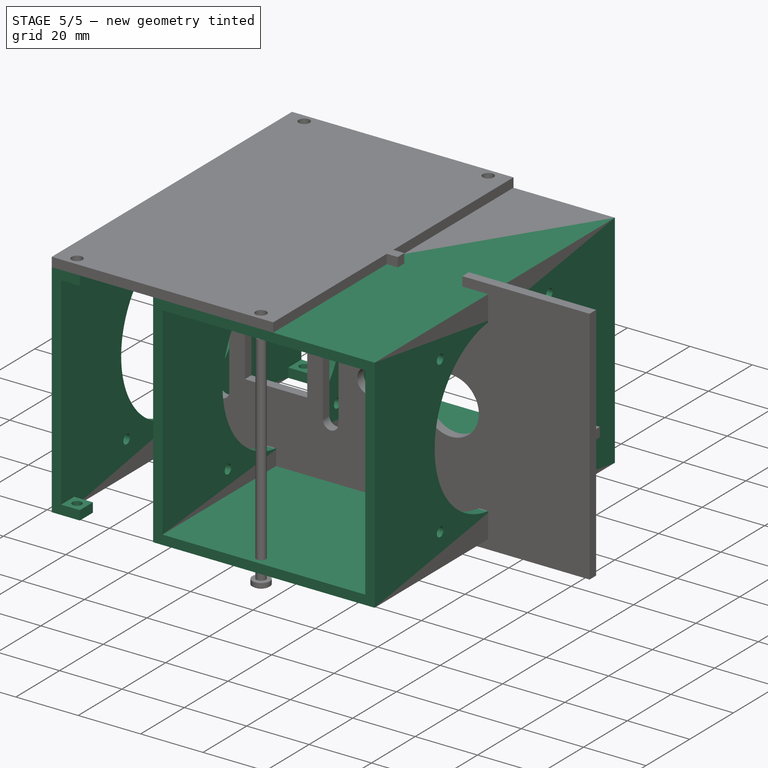
[diagram: stage 5 of 5 — iso view after this stage's code; geometry added in this stage tinted green]
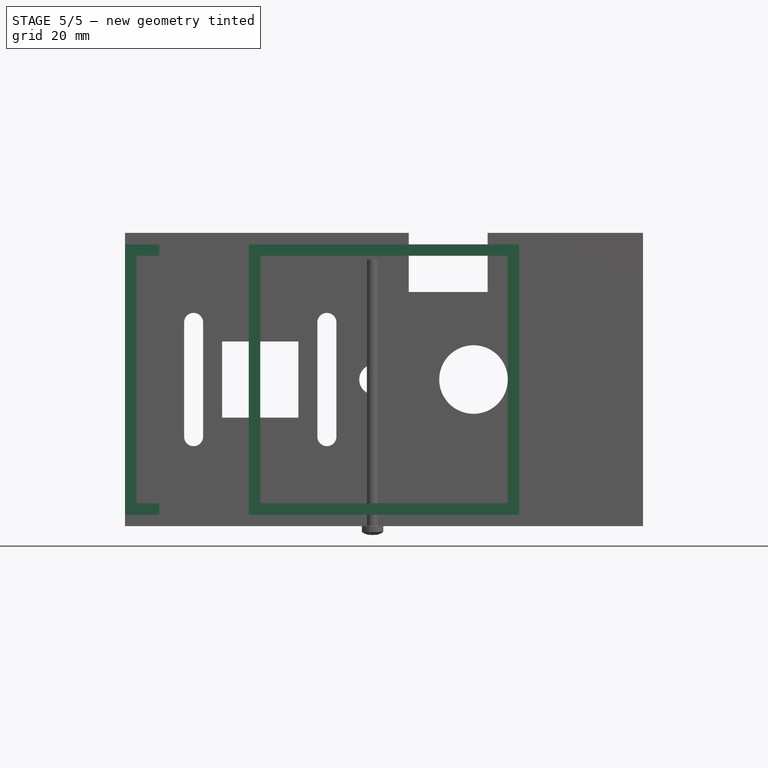
[diagram: stage 5 of 5 — front view after this stage's code; geometry added in this stage tinted green]
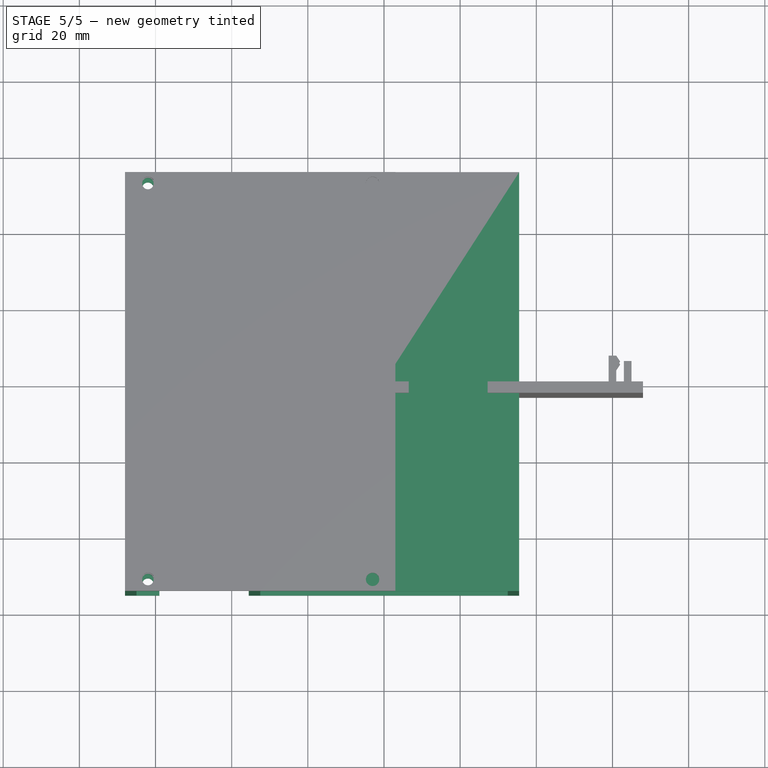
[diagram: stage 5 of 5 — top view after this stage's code; geometry added in this stage tinted green]
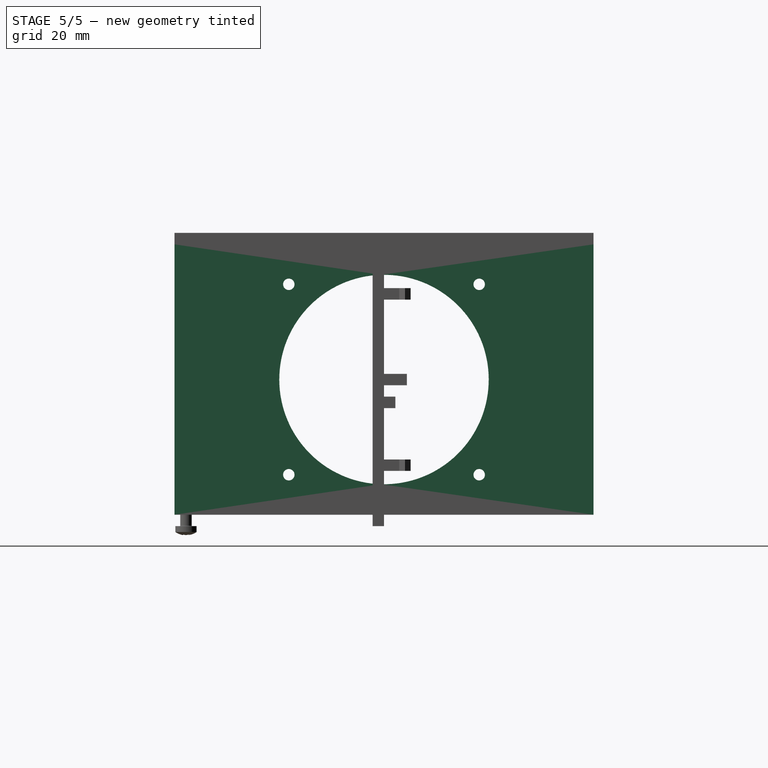
[diagram: stage 5 of 5 — right view after this stage's code; geometry added in this stage tinted green]
FEATURE [Sketcher::SketchObject] Sketch
  FullyConstrained = true
  MapMode = 5
  Placement = pos=(0,0,0) rot=(0.57735,0.57735,0.57735;2.0944rad)
  Support = -> [YZ_Plane]
  sketch-geometry (13):
    g0: Circle CenterX=0 CenterY=0 CenterZ=0 NormalX=0 NormalY=0 NormalZ=1 AngleXU=0 Radius=27.5
    g1: LineSegment StartX=-25 StartY=25 StartZ=0 EndX=25 EndY=25 EndZ=0
    g2: LineSegment StartX=25 StartY=25 StartZ=0 EndX=25 EndY=-25 EndZ=0
    g3: LineSegment StartX=25 StartY=-25 StartZ=0 EndX=-25 EndY=-25 EndZ=0
    g4: LineSegment StartX=-25 StartY=-25 StartZ=0 EndX=-25 EndY=25 EndZ=0
    g5: Circle CenterX=-25 CenterY=25 CenterZ=0 NormalX=0 NormalY=0 NormalZ=1 AngleXU=0 Radius=1.5
    g6: Circle CenterX=25 CenterY=25 CenterZ=0 NormalX=0 NormalY=0 NormalZ=1 AngleXU=0 Radius=1.5
    g7: Circle CenterX=25 CenterY=-25 CenterZ=0 NormalX=0 NormalY=0 NormalZ=1 AngleXU=0 Radius=1.5
    g8: Circle CenterX=-25 CenterY=-25 CenterZ=0 NormalX=0 NormalY=0 NormalZ=1 AngleXU=0 Radius=1.5
    g9: LineSegment StartX=-55 StartY=41 StartZ=0 EndX=55 EndY=41 EndZ=0
    g10: LineSegment StartX=55 StartY=41 StartZ=0 EndX=55 EndY=-41 EndZ=0
    g11: LineSegment StartX=55 StartY=-41 StartZ=0 EndX=-55 EndY=-41 EndZ=0
    g12: LineSegment StartX=-55 StartY=-41 StartZ=0 EndX=-55 EndY=41 EndZ=0
  constraints (30):
    c: Coincident(g0,g-1)
    c: Diameter(g0) = 55
    c: Coincident(g1,g2)
    c: Coincident(g2,g3)
    c: Coincident(g3,g4)
    c: Coincident(g4,g1)
    c: Horizontal(g3)
    c: Vertical(g4)
    c: Symmetric(g2,g1,g-1)
    c: Symmetric(g1,g1,g-2)
    c: Equal(g4,g1)
    c: DistanceY(g4,g4) = 50
    c: Coincident(g5,g1)
    c: Coincident(g6,g1)
    c: Coincident(g7,g2)
    c: Coincident(g8,g3)
    c: Diameter(g5) = 3
    c: Equal(g5,g6)
    c: Equal(g5,g7)
    c: Equal(g5,g8)
    c: Coincident(g9,g10)
    c: Coincident(g10,g11)
    c: Coincident(g11,g12)
    c: Coincident(g12,g9)
    c: Horizontal(g11)
    c: Vertical(g12)
    c: Symmetric(g9,g10,g-1)
    c: DistanceY(g10,g10) = 82
    c: Symmetric(g9,g9,g-2)
    c: DistanceX(g9,g9) = 110
FEATURE [Sketcher::SketchObject] Sketch001
  FullyConstrained = true
  MapMode = 5
  Placement = pos=(0,0,0) rot=(1,0,0;1.5708rad)
  Support = -> [XZ_Plane]
  sketch-geometry (8):
    g0: LineSegment StartX=-35.5 StartY=35.5 StartZ=0 EndX=35.5 EndY=35.5 EndZ=0
    g1: LineSegment StartX=35.5 StartY=35.5 StartZ=0 EndX=35.5 EndY=-35.5 EndZ=0
    g2: LineSegment StartX=35.5 StartY=-35.5 StartZ=0 EndX=-35.5 EndY=-35.5 EndZ=0
    g3: LineSegment StartX=-35.5 StartY=-35.5 StartZ=0 EndX=-35.5 EndY=35.5 EndZ=0
    g4: LineSegment StartX=32.5 StartY=-32.5 StartZ=0 EndX=-32.5 EndY=-32.5 EndZ=0
    g5: LineSegment StartX=-32.5 StartY=-32.5 StartZ=0 EndX=-32.5 EndY=32.5 EndZ=0
    g6: LineSegment StartX=-32.5 StartY=32.5 StartZ=0 EndX=32.5 EndY=32.5 EndZ=0
    g7: LineSegment StartX=32.5 StartY=32.5 StartZ=0 EndX=32.5 EndY=-32.5 EndZ=0
  constraints (20):
    c: Coincident(g0,g1)
    c: Coincident(g1,g2)
    c: Coincident(g2,g3)
    c: Coincident(g3,g0)
    c: Horizontal(g2)
    c: Vertical(g3)
    c: Coincident(g4,g5)
    c: Coincident(g5,g6)
    c: Coincident(g6,g7)
    c: Coincident(g7,g4)
    c: Horizontal(g4)
    c: Vertical(g5)
    c: Symmetric(g1,g0,g-1)
    c: Symmetric(g6,g4,g-1)
    c: Symmetric(g0,g0,g-2)
    c: Symmetric(g5,g6,g-2)
    c: DistanceX(g6,g6) = 65
    c: DistanceY(g7,g7) = 65
    c: DistanceY(g6,g0) = 3
    c: DistanceX(g0,g5) = 3
FEATURE [PartDesign::Pad] Pad  label="wall"
  Direction = (1,1,1)
  Length = 110
  Length2 = 100
  Midplane = true
  Placement = pos=(0,0,0) rot=(1,0,0;1.5708rad)
  Profile = -> Sketch001
  Type = 0
FEATURE [PartDesign::Pocket] Pocket  label="fan"
  BaseFeature = -> Pad
  Length = 5
  Length2 = 100
  Midplane = true
  Placement = pos=(0,0,0) rot=(1,0,0;1.5708rad)
  Profile = -> Sketch
  Type = 1
FEATURE [PartDesign::Mirrored] Mirrored
  BaseFeature = -> Pad002
  MirrorPlane = -> XY_Plane001
  Originals = -> [Pad002]
  Placement = pos=(0,0,0) rot=(0.57735,0.57735,0.57735;2.0944rad)
FEATURE [PartDesign::Body] Body002  label="coverside"
  Group = -> [Sketch007,Pad003]
  Origin = -> Origin002
  Placement = pos=(0,0,-38.5) rot=(0,0,1;0rad)
  Tip = -> Pad003
FEATURE [Part::Mirroring] Part__Mirroring  label="coverplane (Mirror #1)"
  Base = (-32.5,0,0)
  Normal = (1,0,0)
  Source = -> Body001
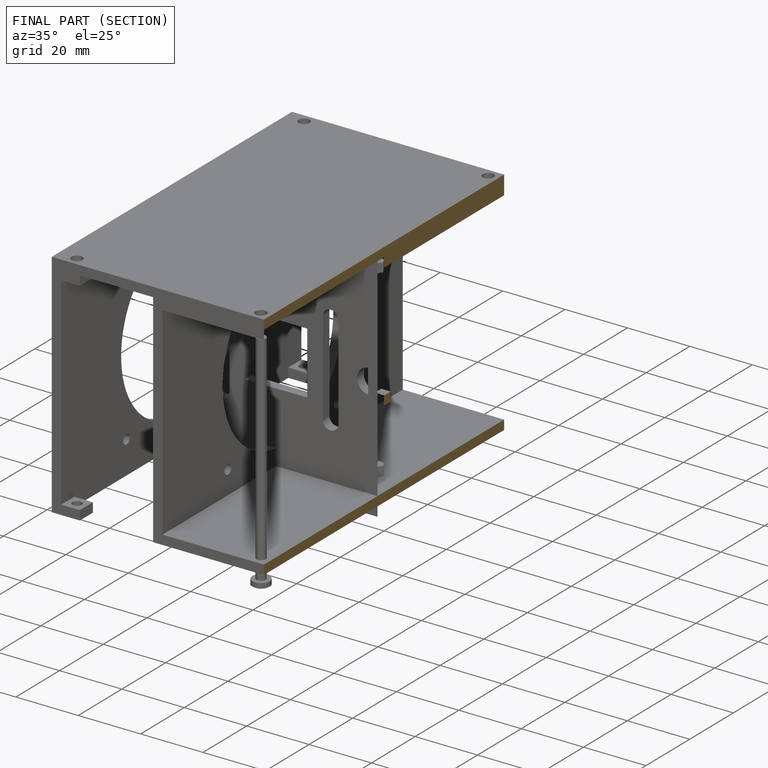
[diagram: finished part — half-section view (interior)]
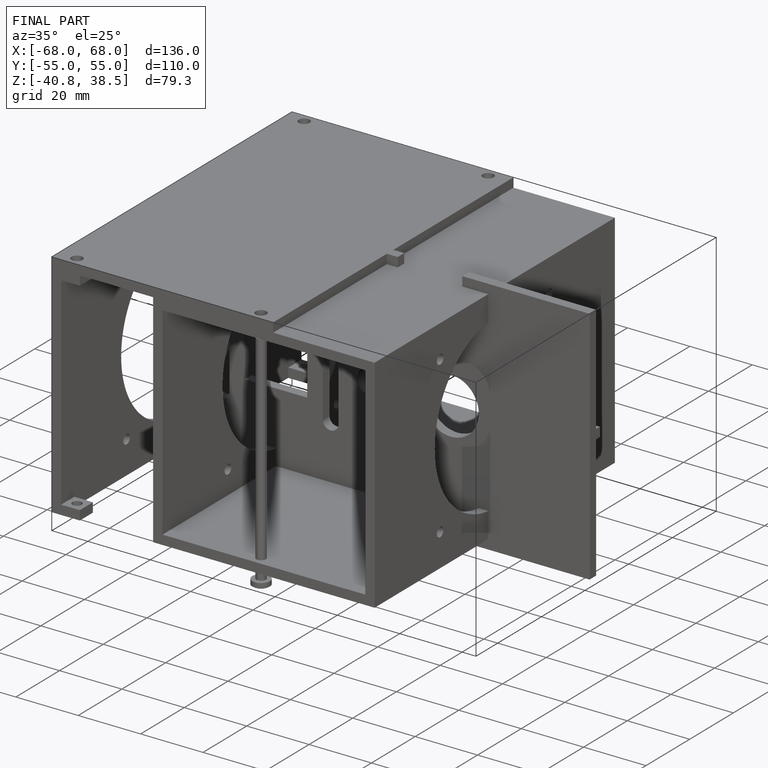
[diagram: finished part — iso view with bounding-box wireframe]
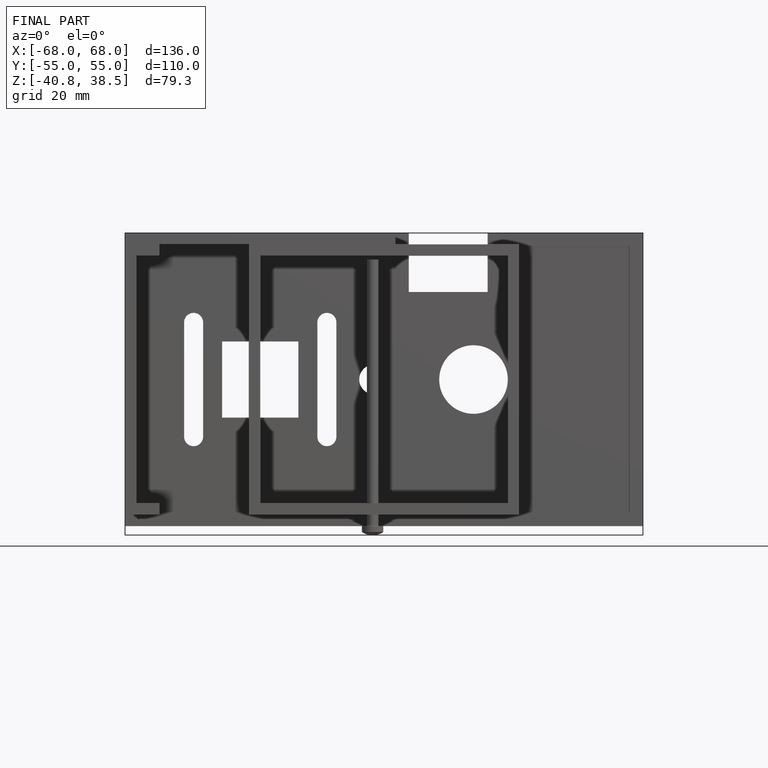
[diagram: finished part — front view with bounding-box wireframe]
